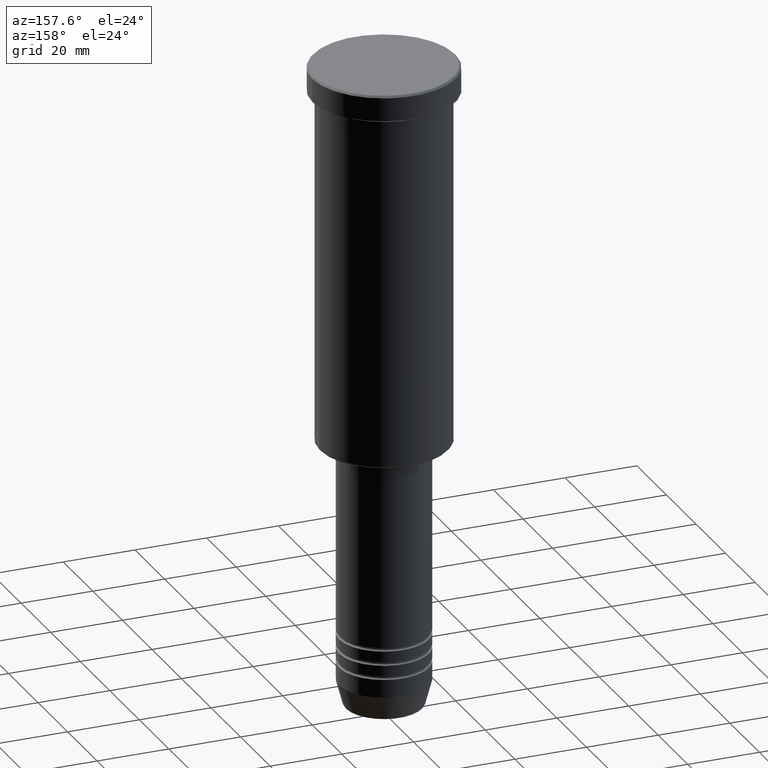
[diagram: clean part render]
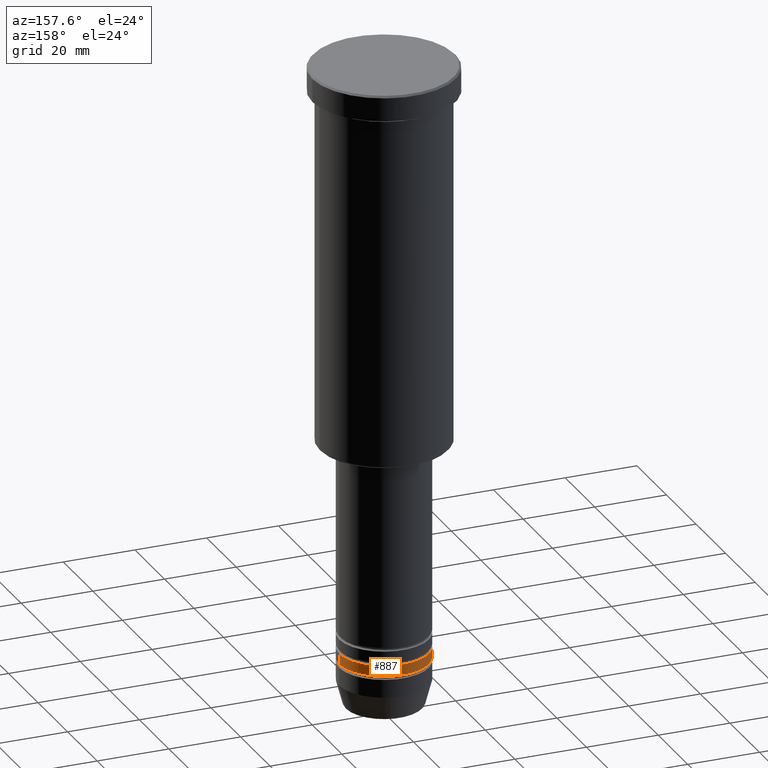
[diagram: same view with one face highlighted and labeled with its STEP entity id]
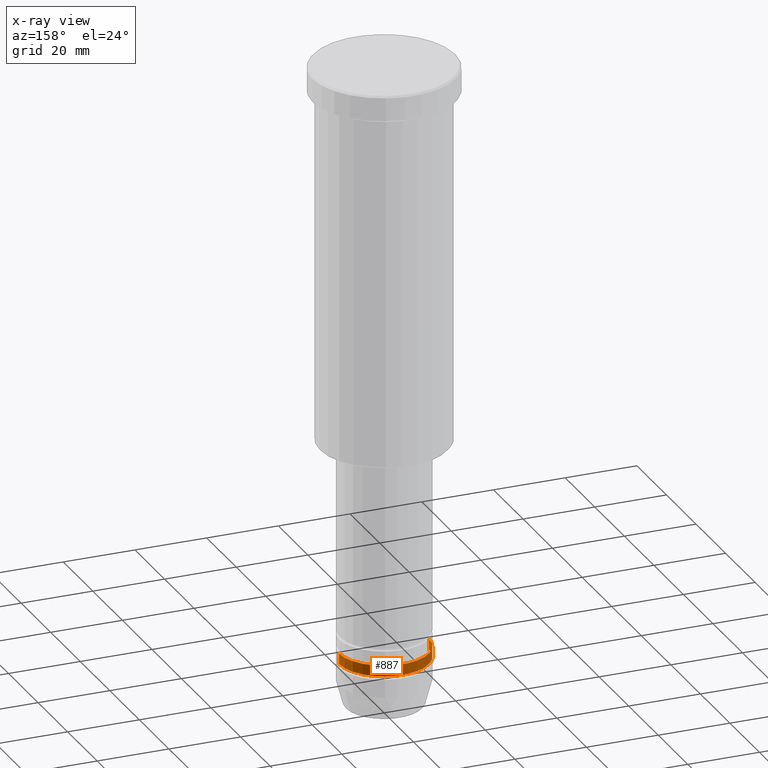
[diagram: x-ray of the same camera — body ghosted, the highlighted face saturated]
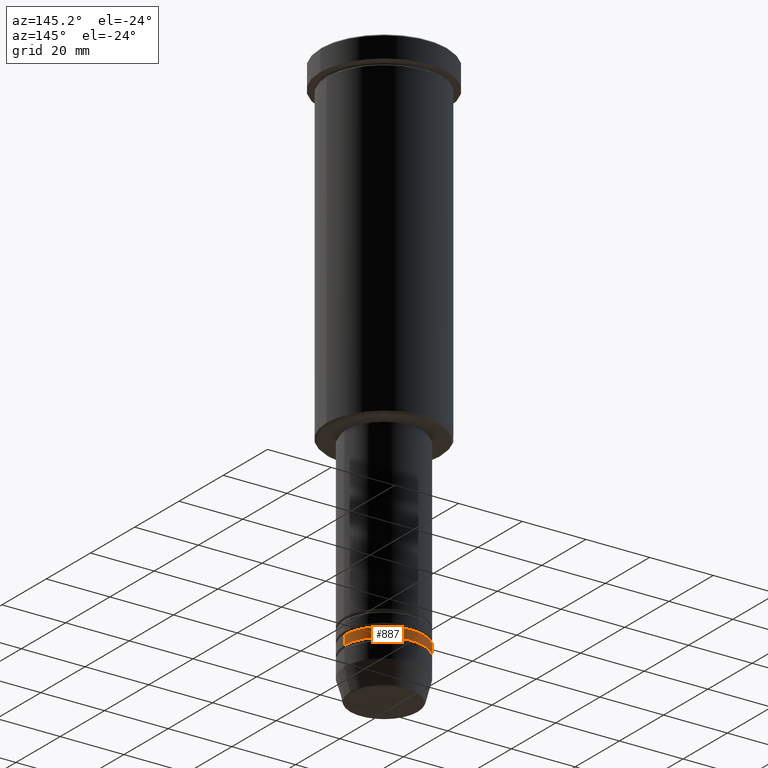
[diagram: same view with one face highlighted and labeled with its STEP entity id]
A machine part, auxiliary view. The second image highlights one B-rep face of the part: STEP entity #887.
The next image is the same camera in x-ray: the body ghosted, the highlighted face saturated — about 0% of this face is hidden behind the body in this view.
A second angle (auxiliary view) of the same face is appended — the face is thin or edge-on in the first view.
In plain terms, the highlighted cylindrical surface (partial cylindrical patch) has radius 12.5 mm, axis along (-0, -0, 1).
Its self-contained STEP definition (entity closure, byte-faithful):
#29 = VERTEX_POINT ( 'NONE', #617 ) ;
#83 = VECTOR ( 'NONE', #479, 1000.000000000000000 ) ;
#138 = CIRCLE ( 'NONE', #494, 12.50000000000000000 ) ;
#212 = EDGE_LOOP ( 'NONE', ( #233, #419, #595, #1014 ) ) ;
#232 = CARTESIAN_POINT ( 'NONE',  ( 12.50000000000000000, 0.000000000000000000, -164.0000000000000000 ) ) ;
#233 = ORIENTED_EDGE ( 'NONE', *, *, #1122, .T. ) ;
#236 = LINE ( 'NONE', #334, #1132 ) ;
#265 = CIRCLE ( 'NONE', #608, 12.50000000000000000 ) ;
#279 = CYLINDRICAL_SURFACE ( 'NONE', #386, 12.50000000000000000 ) ;
#282 = EDGE_CURVE ( 'NONE', #361, #879, #265, .T. ) ;
#309 = CARTESIAN_POINT ( 'NONE',  ( -12.50000000000000000, 1.530808498934191521E-15, 0.000000000000000000 ) ) ;
#329 = DIRECTION ( 'NONE',  ( -0.000000000000000000, -0.000000000000000000, 1.000000000000000000 ) ) ;
#334 = CARTESIAN_POINT ( 'NONE',  ( 12.50000000000000000, 0.000000000000000000, 0.000000000000000000 ) ) ;
#361 = VERTEX_POINT ( 'NONE', #232 ) ;
#386 = AXIS2_PLACEMENT_3D ( 'NONE', #743, #997, #1183 ) ;
#419 = ORIENTED_EDGE ( 'NONE', *, *, #645, .T. ) ;
#479 = DIRECTION ( 'NONE',  ( -0.000000000000000000, -0.000000000000000000, 1.000000000000000000 ) ) ;
#486 = DIRECTION ( 'NONE',  ( -0.000000000000000000, -0.000000000000000000, 1.000000000000000000 ) ) ;
#494 = AXIS2_PLACEMENT_3D ( 'NONE', #1043, #486, #859 ) ;
#565 = CARTESIAN_POINT ( 'NONE',  ( 12.50000000000000000, 0.000000000000000000, -166.9999999999999716 ) ) ;
#585 = LINE ( 'NONE', #309, #83 ) ;
#595 = ORIENTED_EDGE ( 'NONE', *, *, #282, .F. ) ;
#608 = AXIS2_PLACEMENT_3D ( 'NONE', #1071, #696, #1077 ) ;
#617 = CARTESIAN_POINT ( 'NONE',  ( -12.50000000000000000, 1.530808498934191521E-15, -166.9999999999999716 ) ) ;
#643 = CARTESIAN_POINT ( 'NONE',  ( -12.50000000000000000, 1.530808498934191521E-15, -164.0000000000000000 ) ) ;
#645 = EDGE_CURVE ( 'NONE', #29, #879, #585, .T. ) ;
#696 = DIRECTION ( 'NONE',  ( -0.000000000000000000, -0.000000000000000000, 1.000000000000000000 ) ) ;
#743 = CARTESIAN_POINT ( 'NONE',  ( 0.000000000000000000, 0.000000000000000000, 0.000000000000000000 ) ) ;
#781 = EDGE_CURVE ( 'NONE', #992, #361, #236, .T. ) ;
#859 = DIRECTION ( 'NONE',  ( 1.000000000000000000, 0.000000000000000000, 0.000000000000000000 ) ) ;
#879 = VERTEX_POINT ( 'NONE', #643 ) ;
#887 = ADVANCED_FACE ( 'NONE', ( #1017 ), #279, .T. ) ;
#992 = VERTEX_POINT ( 'NONE', #565 ) ;
#997 = DIRECTION ( 'NONE',  ( -0.000000000000000000, -0.000000000000000000, 1.000000000000000000 ) ) ;
#1014 = ORIENTED_EDGE ( 'NONE', *, *, #781, .F. ) ;
#1017 = FACE_OUTER_BOUND ( 'NONE', #212, .T. ) ;
#1043 = CARTESIAN_POINT ( 'NONE',  ( 0.000000000000000000, 0.000000000000000000, -166.9999999999999716 ) ) ;
#1071 = CARTESIAN_POINT ( 'NONE',  ( 0.000000000000000000, 0.000000000000000000, -164.0000000000000000 ) ) ;
#1077 = DIRECTION ( 'NONE',  ( 1.000000000000000000, 0.000000000000000000, 0.000000000000000000 ) ) ;
#1122 = EDGE_CURVE ( 'NONE', #992, #29, #138, .T. ) ;
#1132 = VECTOR ( 'NONE', #329, 1000.000000000000000 ) ;
#1183 = DIRECTION ( 'NONE',  ( 1.000000000000000000, 0.000000000000000000, 0.000000000000000000 ) ) ;